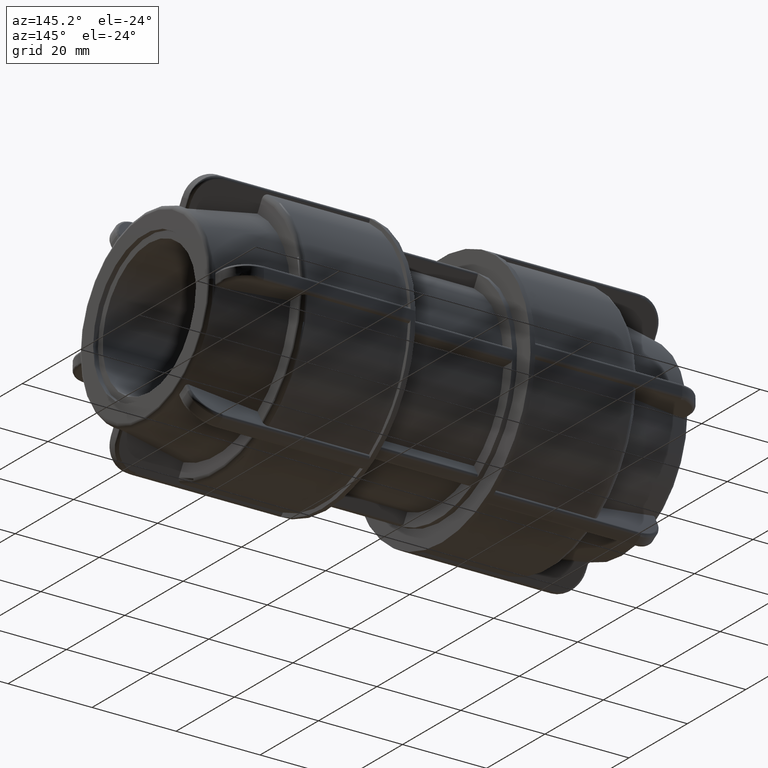
[diagram: clean part render]
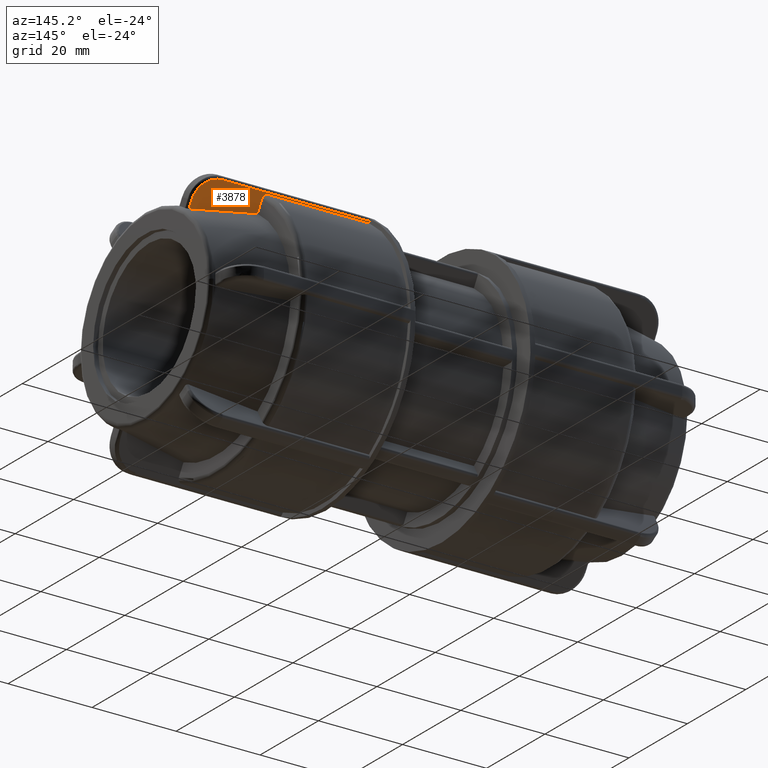
[diagram: same view with one face highlighted and labeled with its STEP entity id]
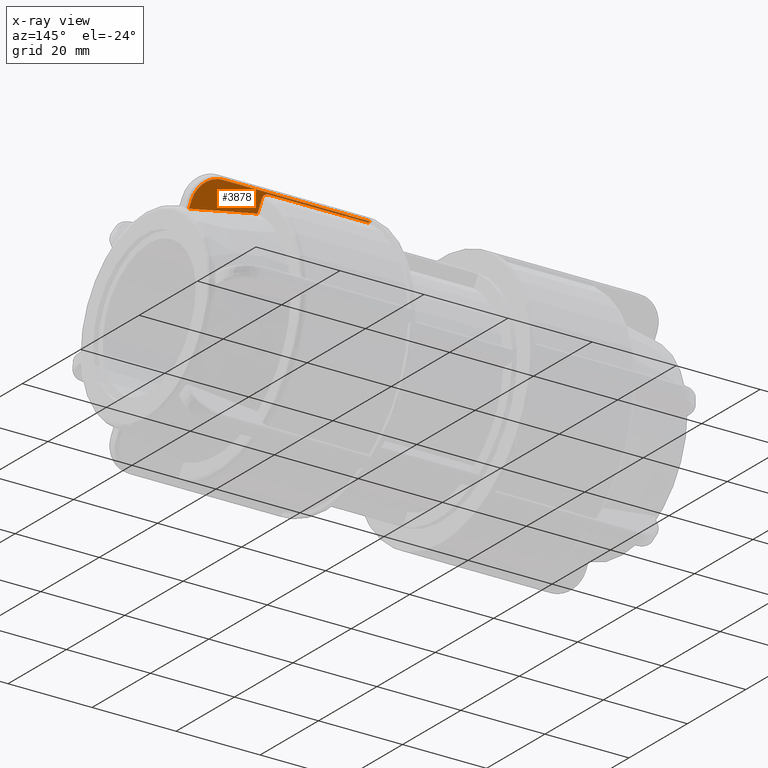
[diagram: x-ray of the same camera — body ghosted, the highlighted face saturated]
A machine part, auxiliary view. The second image highlights one B-rep face of the part: STEP entity #3878.
The next image is the same camera in x-ray: the body ghosted, the highlighted face saturated — about 0% of this face is hidden behind the body in this view.
In plain terms, the highlighted planar face has unit normal (-0, 0.866, -0.5).
Its self-contained STEP definition (entity closure, byte-faithful):
#64=(
BOUNDED_CURVE()
B_SPLINE_CURVE(2,(#7873,#7874,#7875),.UNSPECIFIED.,.F.,.F.)
B_SPLINE_CURVE_WITH_KNOTS((3,3),(0.,1.55517595816848),.UNSPECIFIED.)
CURVE()
GEOMETRIC_REPRESENTATION_ITEM()
RATIONAL_B_SPLINE_CURVE((1.,1.00165971048734,1.00013426188872))
REPRESENTATION_ITEM('')
);
#144=B_SPLINE_CURVE_WITH_KNOTS('',3,(#7669,#7670,#7671,#7672,#7673,#7674),
 .UNSPECIFIED.,.F.,.F.,(4,1,1,4),(0.,0.369700508808735,0.616167514681225,
0.862634520553715),.UNSPECIFIED.);
#154=B_SPLINE_CURVE_WITH_KNOTS('',3,(#7879,#7880,#7881,#7882,#7883,#7884,
#7885,#7886,#7887,#7888),.UNSPECIFIED.,.F.,.F.,(4,2,2,2,4),(0.,0.0421872088120854,
0.0844060247228062,0.126664721365403,0.168959208642008),.UNSPECIFIED.);
#285=PLANE('',#4286);
#492=FACE_OUTER_BOUND('',#742,.T.);
#742=EDGE_LOOP('',(#3384,#3385,#3386,#3387,#3388,#3389,#3390,#3391));
#983=LINE('',#7628,#1211);
#984=LINE('',#7691,#1212);
#1004=LINE('',#7877,#1232);
#1005=LINE('',#7890,#1233);
#1006=LINE('',#7891,#1234);
#1211=VECTOR('',#5249,34.94);
#1212=VECTOR('',#5256,1.72777200380252);
#1232=VECTOR('',#5306,3.03518743799491);
#1233=VECTOR('',#5307,23.94);
#1234=VECTOR('',#5308,0.331897235670804);
#1799=VERTEX_POINT('',#7625);
#1800=VERTEX_POINT('',#7627);
#1802=VERTEX_POINT('',#7667);
#1804=VERTEX_POINT('',#7677);
#1831=VERTEX_POINT('',#7872);
#1832=VERTEX_POINT('',#7876);
#1833=VERTEX_POINT('',#7878);
#1834=VERTEX_POINT('',#7889);
#2334=EDGE_CURVE('',#1799,#1800,#983,.T.);
#2338=EDGE_CURVE('',#1802,#1799,#144,.T.);
#2340=EDGE_CURVE('',#1804,#1802,#984,.T.);
#2378=EDGE_CURVE('',#1831,#1804,#64,.T.);
#2379=EDGE_CURVE('',#1832,#1831,#1004,.T.);
#2380=EDGE_CURVE('',#1833,#1832,#154,.T.);
#2381=EDGE_CURVE('',#1834,#1833,#1005,.T.);
#2382=EDGE_CURVE('',#1800,#1834,#1006,.T.);
#3384=ORIENTED_EDGE('',*,*,#2340,.F.);
#3385=ORIENTED_EDGE('',*,*,#2378,.F.);
#3386=ORIENTED_EDGE('',*,*,#2379,.F.);
#3387=ORIENTED_EDGE('',*,*,#2380,.F.);
#3388=ORIENTED_EDGE('',*,*,#2381,.F.);
#3389=ORIENTED_EDGE('',*,*,#2382,.F.);
#3390=ORIENTED_EDGE('',*,*,#2334,.F.);
#3391=ORIENTED_EDGE('',*,*,#2338,.F.);
#3878=ADVANCED_FACE('',(#492),#285,.T.);
#4286=AXIS2_PLACEMENT_3D('',#7871,#5304,#5305);
#5249=DIRECTION('',(-1.,-4.02560006436975E-16,5.99981472390289E-17));
#5256=DIRECTION('',(-8.75617233386846E-17,0.5,0.866025403784438));
#5304=DIRECTION('center_axis',(-3.78626265741562E-16,0.866025403784439,
-0.5));
#5305=DIRECTION('ref_axis',(0.,0.5,0.866025403784439));
#5306=DIRECTION('',(1.53080849893419E-16,-0.5,-0.866025403784438));
#5307=DIRECTION('',(1.,3.06161699786838E-16,0.));
#5308=DIRECTION('',(1.53080849893419E-16,-0.5,-0.866025403784439));
#7625=CARTESIAN_POINT('',(49.76,16.3224408388675,25.0712968364557));
#7627=CARTESIAN_POINT('',(14.82,16.3224408388675,25.0712968364557));
#7628=CARTESIAN_POINT('',(14.25,16.3224408388675,25.0712968364557));
#7667=CARTESIAN_POINT('',(55.25,13.5755945015871,20.3136194197016));
#7669=CARTESIAN_POINT('Ctrl Pts',(55.25,13.5755945015871,20.3136194197016));
#7670=CARTESIAN_POINT('Ctrl Pts',(55.25,14.1917620162684,21.3808528611029));
#7671=CARTESIAN_POINT('Ctrl Pts',(54.5305984209497,15.2150366984536,23.1532166007466));
#7672=CARTESIAN_POINT('Ctrl Pts',(52.2217244566917,16.1343286823517,24.7454770238489));
#7673=CARTESIAN_POINT('Ctrl Pts',(50.5815566862417,16.3224408388675,25.0712968364557));
#7674=CARTESIAN_POINT('Ctrl Pts',(49.76,16.3224408388675,25.0712968364557));
#7677=CARTESIAN_POINT('',(55.25,12.7117084996859,18.8173249724611));
#7691=CARTESIAN_POINT('',(55.25,9.46869754767814,13.2002652340813));
#7871=CARTESIAN_POINT('Origin',(13.68,7.0797165148858,9.06242870696666));
#7872=CARTESIAN_POINT('',(39.9,14.0680295414836,21.1665419282295));
#7873=CARTESIAN_POINT('Ctrl Pts',(39.9,14.0680295414837,21.1665419282295));
#7874=CARTESIAN_POINT('Ctrl Pts',(48.0085874699233,13.3517273110269,19.9258700715035));
#7875=CARTESIAN_POINT('Ctrl Pts',(55.2500000000005,12.7117084996859,18.817324972461));
#7876=CARTESIAN_POINT('',(39.9,15.5856232604811,23.7950913547805));
#7877=CARTESIAN_POINT('',(39.9,7.40957750173481,9.63376469562393));
#7878=CARTESIAN_POINT('',(38.76,16.1564922210321,24.7838653989189));
#7879=CARTESIAN_POINT('Ctrl Pts',(38.76,16.1564922210321,24.7838653989189));
#7880=CARTESIAN_POINT('Ctrl Pts',(38.9006240293736,16.1564922210321,24.7838653989189));
#7881=CARTESIAN_POINT('Ctrl Pts',(39.0661236597164,16.1400146472264,24.755325403902));
#7882=CARTESIAN_POINT('Ctrl Pts',(39.3260279398787,16.0861409298325,24.6620133881831));
#7883=CARTESIAN_POINT('Ctrl Pts',(39.4663946709314,16.039194056976,24.5806990191391));
#7884=CARTESIAN_POINT('Ctrl Pts',(39.6654204568603,15.9395915634861,24.4081824398542));
#7885=CARTESIAN_POINT('Ctrl Pts',(39.7592572633368,15.8692932476791,24.2864221851899));
#7886=CARTESIAN_POINT('Ctrl Pts',(39.8670327443908,15.7390814434865,24.0608887245831));
#7887=CARTESIAN_POINT('Ctrl Pts',(39.9,15.6561140726088,23.9171850228525));
#7888=CARTESIAN_POINT('Ctrl Pts',(39.9,15.5856232604811,23.7950913547805));
#7889=CARTESIAN_POINT('',(14.82,16.1564922210321,24.7838653989189));
#7890=CARTESIAN_POINT('',(27.36,16.1564922210321,24.7838653989189));
#7891=CARTESIAN_POINT('',(14.82,7.93080358047045,10.536554746224));